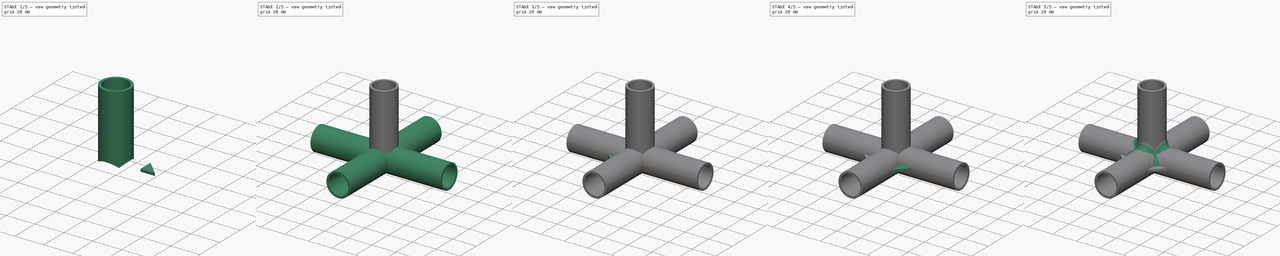
[diagram: build sequence overview — one tinted view per stage of 5, left to right]
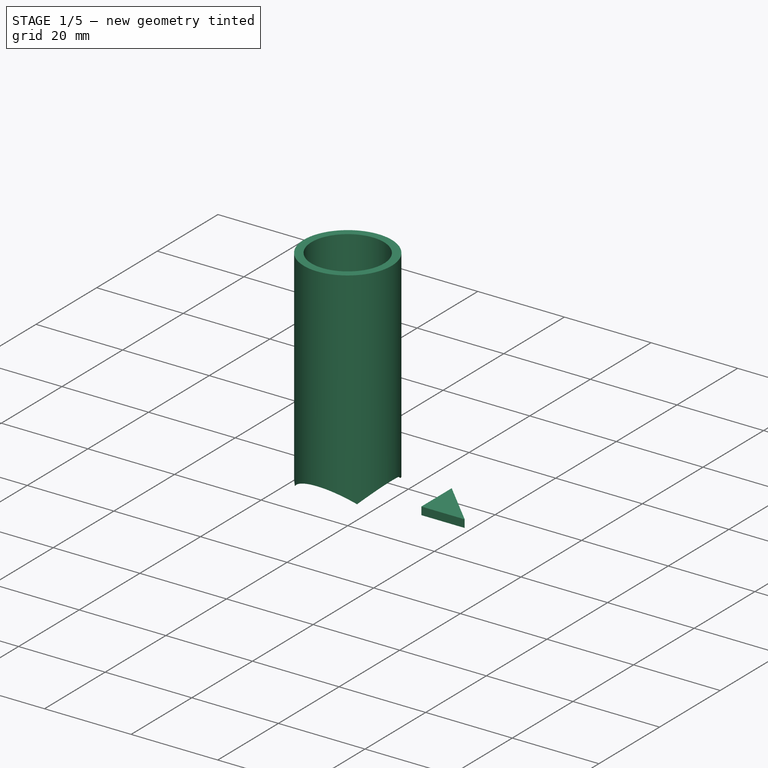
[diagram: stage 1 of 5 — iso view after this stage's code; geometry added in this stage tinted green]
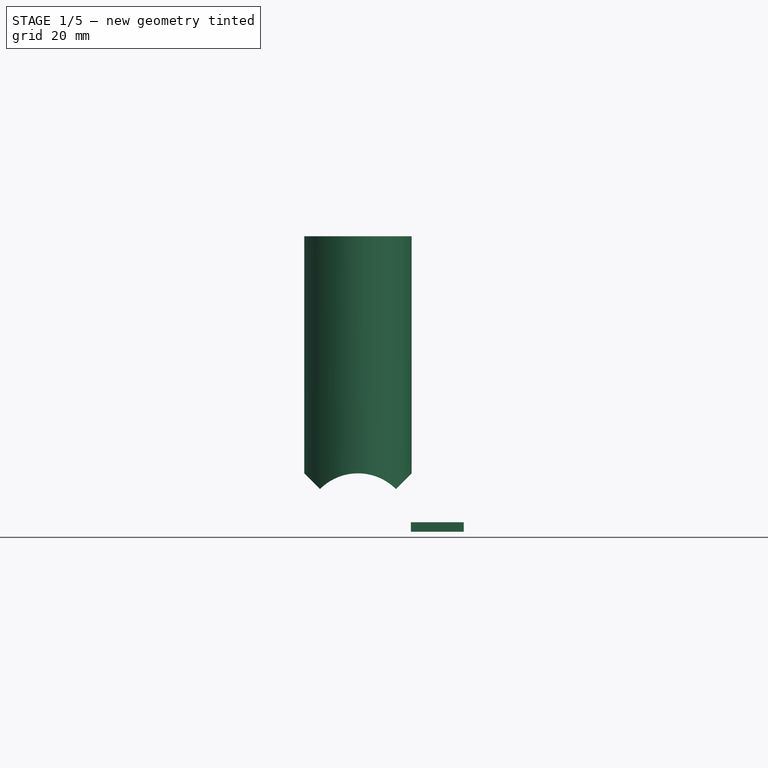
[diagram: stage 1 of 5 — front view after this stage's code; geometry added in this stage tinted green]
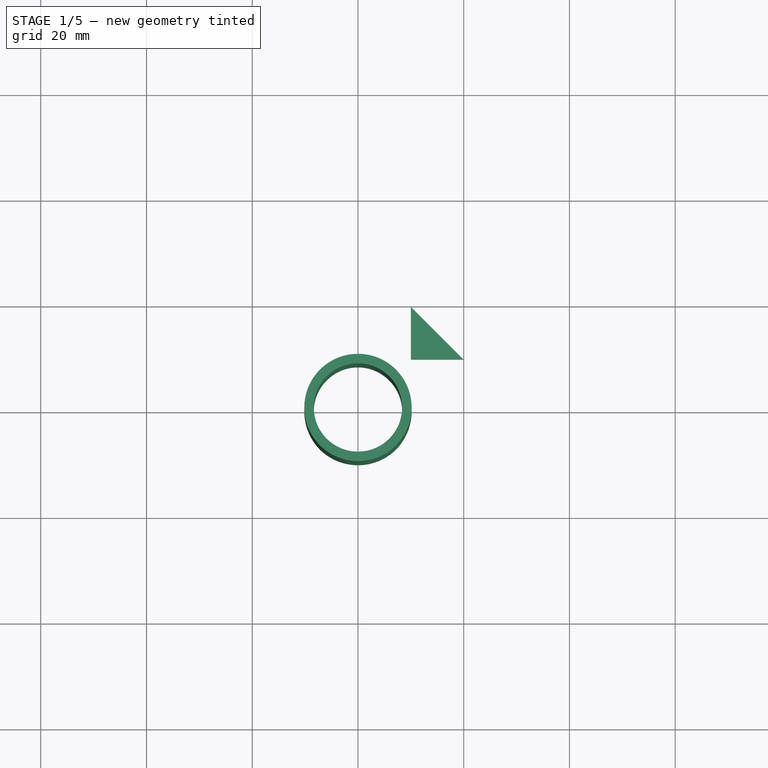
[diagram: stage 1 of 5 — top view after this stage's code; geometry added in this stage tinted green]
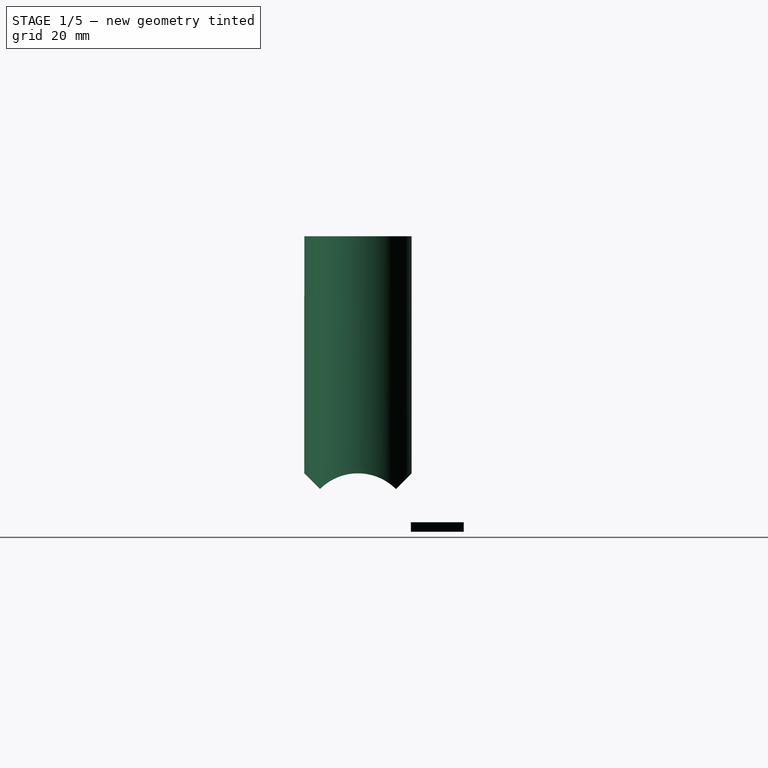
[diagram: stage 1 of 5 — right view after this stage's code; geometry added in this stage tinted green]
FCSTD DOCUMENT  (FreeCAD 0.18R16131 (Git))
Label: Electric Pipe Connectors
License: CreativeCommons Attribution-NonCommercial-NoDerivatives
LicenseURL: http://creativecommons.org/licenses/by-nc-nd/4.0/
objects: Sketcher::SketchObject×12, PartDesign::Body×9, PartDesign::Pad×7, PartDesign::Pocket×5, Part::Fuse×5, Spreadsheet::Sheet×1, PartDesign::Boolean×1, App::DocumentObjectGroup×1, PartDesign::Fillet×1
note: 52 computed .brp shape members not serialized (recipe doc carries the construction recipe); baked Part::Feature solids carry a one-line shape summary decoded from their .brp

FEATURE [PartDesign::Body] Body002  label="IntersectionPipe"
  Group = -> [Boolean,Sketch002,Pocket,Sketch003,Pocket001]
  Origin = -> Origin002
  Tip = -> Pocket001
FEATURE [Sketcher::SketchObject] Sketch004
  MapMode = 5
  Support = -> [XY_Plane003]
  sketch-geometry (3):
    g0: LineSegment StartX=10 StartY=20 StartZ=0 EndX=20 EndY=10 EndZ=0
    g1: LineSegment StartX=20 StartY=10 StartZ=0 EndX=10 EndY=10 EndZ=0
    g2: LineSegment StartX=10 StartY=10 StartZ=0 EndX=10 EndY=20 EndZ=0
  constraints (9):
    c: Coincident(g1,g0)
    c: Horizontal(g1)
    c: Coincident(g2,g1)
    c: Coincident(g2,g0)
    c: Vertical(g2)
    c: DistanceX(g-1,g1) = 10
    c: DistanceY(g-1,g1) = 10
    c: DistanceY(g0) = 20
    c: DistanceX(g-1,g0) = 20
FEATURE [PartDesign::Pad] Pad002  label="TrianglePad001"
  Length = 0.9
  Length2 = 0.9
  Profile = -> Sketch004
  Type = 4
  expr: Length2 = Spreadsheet.WallThickness / 2
  expr: Length = Spreadsheet.WallThickness / 2
FEATURE [Sketcher::SketchObject] Sketch008
  MapMode = 5
  Support = -> [XY_Plane008]
  expr: Constraints[3] = Spreadsheet.InnerRadius + Spreadsheet.WallThickness
  expr: Constraints[2] = Spreadsheet.InnerRadius
  sketch-geometry (2):
    g0: Circle CenterX=0 CenterY=0 CenterZ=0 NormalX=0 NormalY=0 NormalZ=1 AngleXU=0 Radius=8.35
    g1: Circle CenterX=0 CenterY=0 CenterZ=0 NormalX=0 NormalY=0 NormalZ=1 AngleXU=0 Radius=10.15
  constraints (4):
    c: Coincident(g0,g-1)
    c: Coincident(g1,g0)
    c: Radius(g0) = 8.35
    c: Radius(g1) = 10.15
FEATURE [PartDesign::Pad] Pad006
  Length = 55
  Length2 = 100
  Profile = -> Sketch008
  Type = 0
  expr: Length = Spreadsheet.SingleTubeLength
FEATURE [Sketcher::SketchObject] Sketch009
  MapMode = 5
  Placement = pos=(0,0,0) rot=(1,0,0;1.5708rad)
  Support = -> [XZ_Plane008]
  expr: Constraints[1] = Spreadsheet.InnerRadius + Spreadsheet.WallThickness
  sketch-geometry (1):
    g0: Circle CenterX=0 CenterY=0 CenterZ=0 NormalX=0 NormalY=0 NormalZ=1 AngleXU=0 Radius=10.15
  constraints (2):
    c: Coincident(g0,g-1)
    c: Radius(g0) = 10.15
FEATURE [PartDesign::Pocket] Pocket002
  BaseFeature = -> Pad006
  Length = 10.15
  Length2 = 10.15
  Profile = -> Sketch009
  Type = 4
  expr: Length2 = Spreadsheet.InnerRadius + Spreadsheet.WallThickness
  expr: Length = Spreadsheet.InnerRadius + Spreadsheet.WallThickness
FEATURE [Sketcher::SketchObject] Sketch010
  MapMode = 5
  Placement = pos=(0,0,0) rot=(0.57735,0.57735,0.57735;2.0944rad)
  Support = -> [YZ_Plane008]
  expr: Constraints[1] = Spreadsheet.InnerRadius + Spreadsheet.WallThickness
  sketch-geometry (1):
    g0: Circle CenterX=0 CenterY=0 CenterZ=0 NormalX=0 NormalY=0 NormalZ=1 AngleXU=0 Radius=10.15
  constraints (2):
    c: Coincident(g0,g-1)
    c: Radius(g0) = 10.15
FEATURE [PartDesign::Pocket] Pocket003  label="PipeZPocket"
  BaseFeature = -> Pocket002
  Length = 10.15
  Length2 = 10.15
  Profile = -> Sketch010
  Type = 4
  expr: Length2 = Spreadsheet.InnerRadius + Spreadsheet.WallThickness
  expr: Length = Spreadsheet.InnerRadius + Spreadsheet.WallThickness
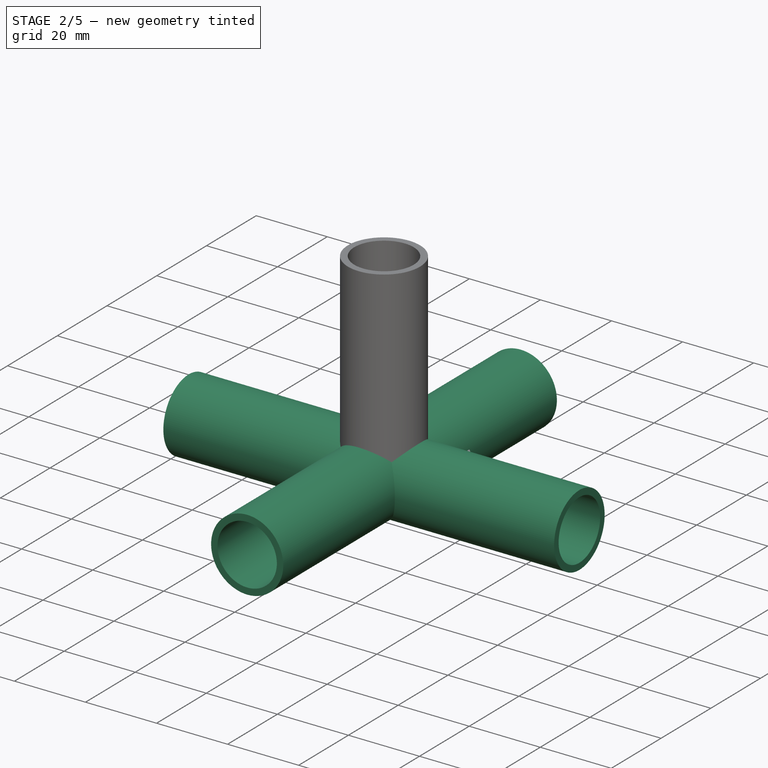
[diagram: stage 2 of 5 — iso view after this stage's code; geometry added in this stage tinted green]
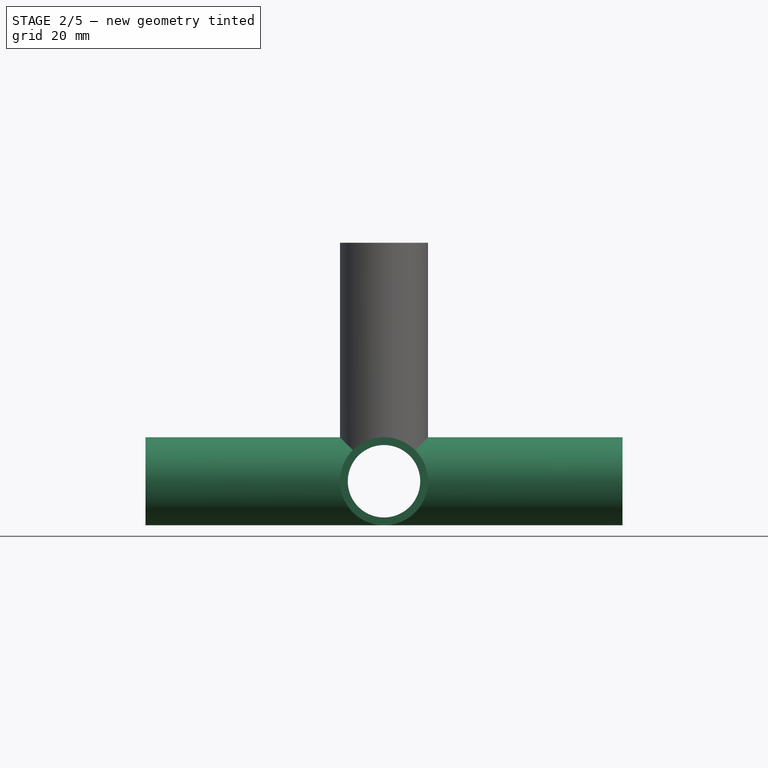
[diagram: stage 2 of 5 — front view after this stage's code; geometry added in this stage tinted green]
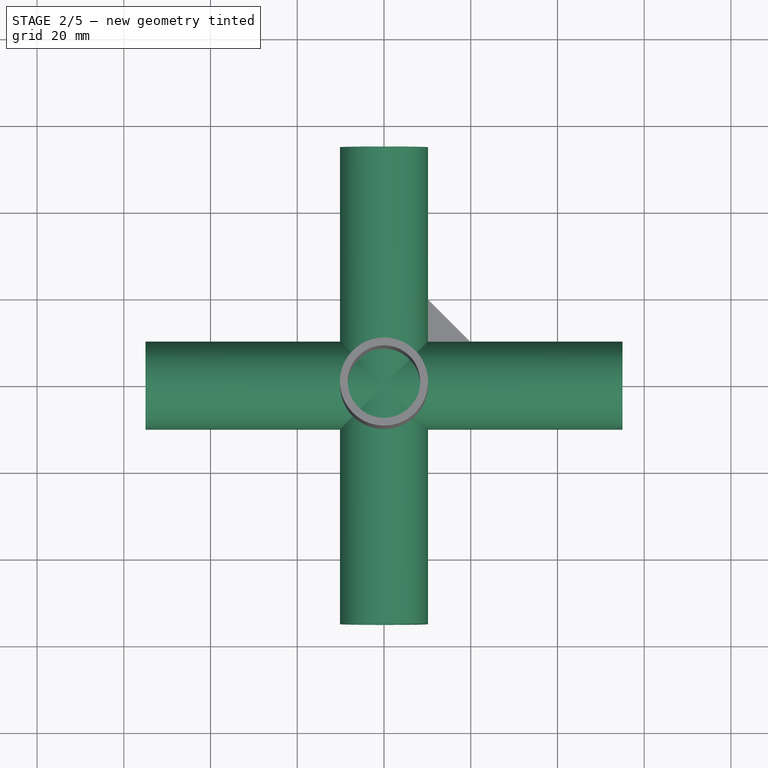
[diagram: stage 2 of 5 — top view after this stage's code; geometry added in this stage tinted green]
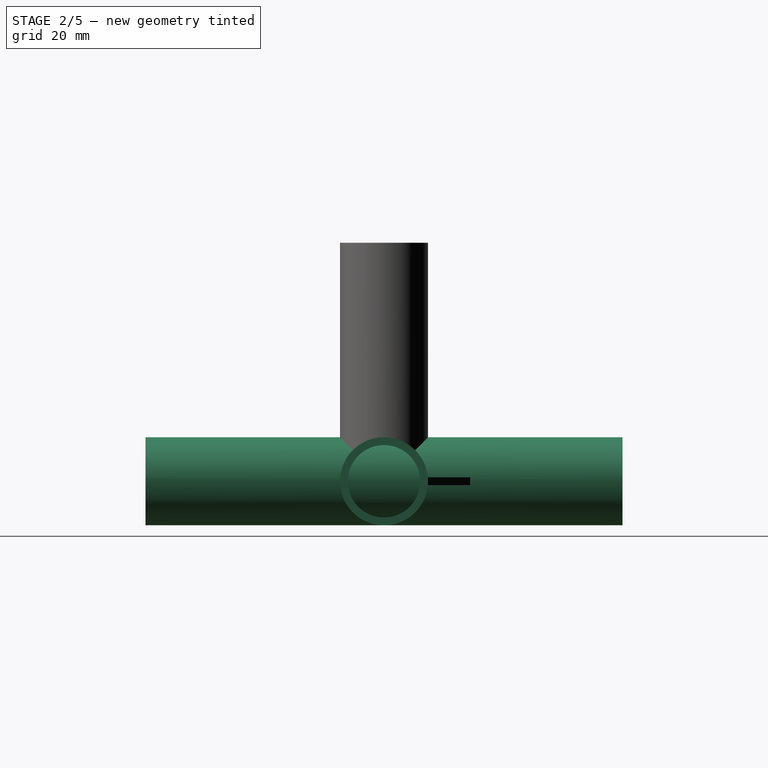
[diagram: stage 2 of 5 — right view after this stage's code; geometry added in this stage tinted green]
FEATURE [Sketcher::SketchObject] Sketch
  MapMode = 5
  Placement = pos=(0,0,0) rot=(1,0,0;1.5708rad)
  Support = -> [XZ_Plane]
  expr: Constraints[3] = Spreadsheet.InnerRadius + Spreadsheet.WallThickness
  expr: Constraints[1] = Spreadsheet.InnerRadius
  sketch-geometry (2):
    g0: Circle CenterX=0 CenterY=0 CenterZ=0 NormalX=0 NormalY=0 NormalZ=1 AngleXU=0 Radius=8.35
    g1: Circle CenterX=0 CenterY=0 CenterZ=0 NormalX=0 NormalY=0 NormalZ=1 AngleXU=0 Radius=10.15
  constraints (4):
    c: Coincident(g0,g-1)
    c: Radius(g0) = 8.35
    c: Coincident(g1,g0)
    c: Radius(g1) = 10.15
FEATURE [Spreadsheet::Sheet] Spreadsheet
  cells = A1=InnerDiameter; B1(InnerDiameter)==16.7mm; A2=InnerRadius; B2(InnerRadius)==B1 / 2; A3=WallThickness; B3(WallThickness)==1.8mm; A4=SingleTubeLength; B4(SingleTubeLength)==55mm
FEATURE [PartDesign::Pad] Pad  label="PipeYPad"
  Length = 55
  Length2 = 55
  Placement = pos=(0,0,0) rot=(1,0,0;1.5708rad)
  Profile = -> Sketch
  Type = 4
  expr: Length2 = Spreadsheet.SingleTubeLength
  expr: Length = Spreadsheet.SingleTubeLength
FEATURE [PartDesign::Body] Body  label="PipeY"
  Group = -> [Sketch,Pad]
  Origin = -> Origin
  Tip = -> Pad
FEATURE [Sketcher::SketchObject] Sketch001
  MapMode = 5
  Placement = pos=(0,0,0) rot=(0.57735,0.57735,0.57735;2.0944rad)
  Support = -> [YZ_Plane001]
  expr: Constraints[3] = Spreadsheet.InnerRadius + Spreadsheet.WallThickness
  expr: Constraints[1] = Spreadsheet.InnerRadius
  sketch-geometry (2):
    g0: Circle CenterX=0 CenterY=0 CenterZ=0 NormalX=0 NormalY=0 NormalZ=1 AngleXU=0 Radius=8.35
    g1: Circle CenterX=0 CenterY=0 CenterZ=0 NormalX=0 NormalY=0 NormalZ=1 AngleXU=0 Radius=10.15
  constraints (4):
    c: Coincident(g0,g-1)
    c: Radius(g0) = 8.35
    c: Coincident(g1,g0)
    c: Radius(g1) = 10.15
FEATURE [PartDesign::Pad] Pad001  label="PipeXPad"
  Length = 55
  Length2 = 55
  Placement = pos=(0,0,0) rot=(0.57735,0.57735,0.57735;2.0944rad)
  Profile = -> Sketch001
  Type = 4
  expr: Length2 = Spreadsheet.SingleTubeLength
  expr: Length = Spreadsheet.SingleTubeLength
FEATURE [PartDesign::Body] Body001  label="PipeX"
  Group = -> [Sketch001,Pad001]
  Origin = -> Origin001
  Tip = -> Pad001
FEATURE [PartDesign::Boolean] Boolean
  Group = -> [Body,Body001]
  Type = 0
FEATURE [Sketcher::SketchObject] Sketch002
  MapMode = 5
  Placement = pos=(0,-55,-2.42e-14) rot=(1,0,0;1.5708rad)
  Support = -> [Boolean]
  expr: Constraints[1] = Spreadsheet.InnerRadius
  sketch-geometry (1):
    g0: Circle CenterX=0 CenterY=0 CenterZ=0 NormalX=0 NormalY=0 NormalZ=1 AngleXU=0 Radius=8.35
  constraints (2):
    c: Coincident(g0,g-1)
    c: Radius(g0) = 8.35
FEATURE [PartDesign::Pocket] Pocket
  BaseFeature = -> Boolean
  Length = 100
  Length2 = 100
  Profile = -> Sketch002
  Type = 1
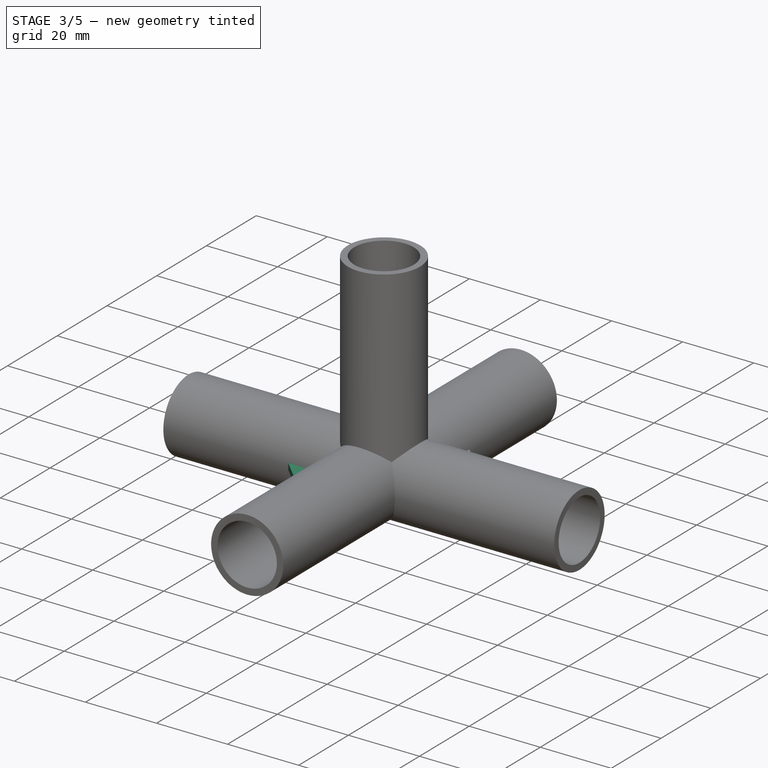
[diagram: stage 3 of 5 — iso view after this stage's code; geometry added in this stage tinted green]
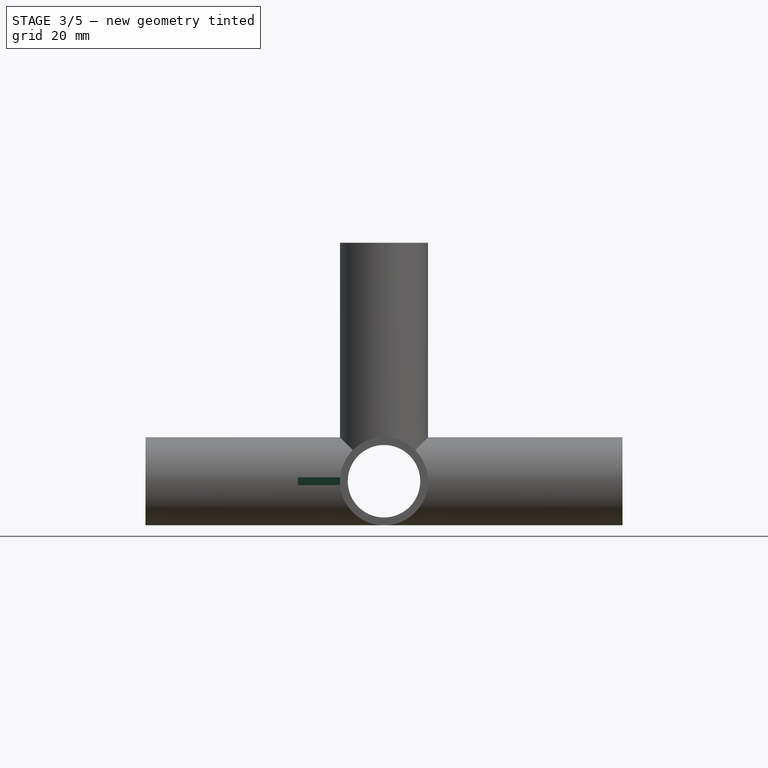
[diagram: stage 3 of 5 — front view after this stage's code; geometry added in this stage tinted green]
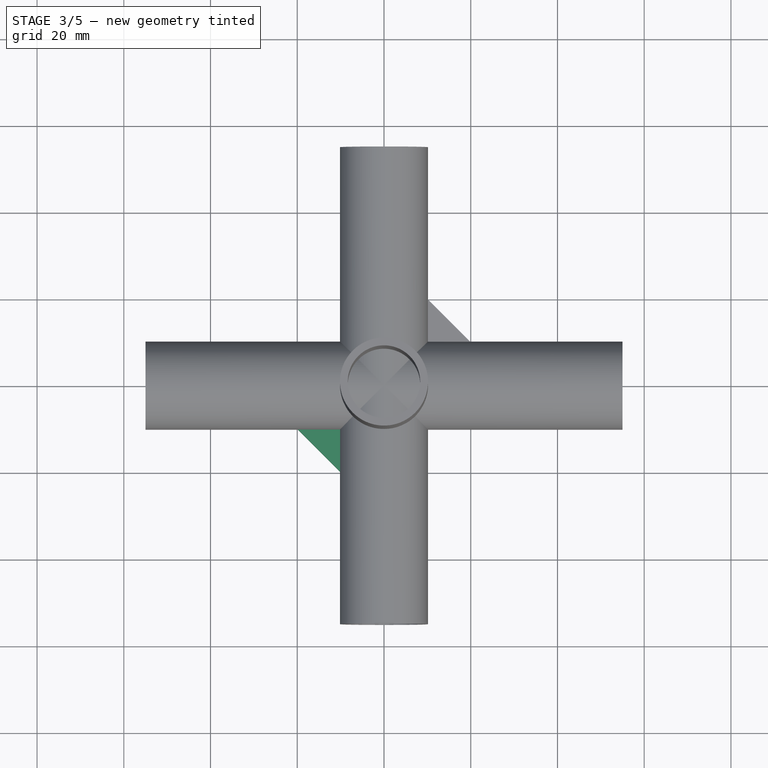
[diagram: stage 3 of 5 — top view after this stage's code; geometry added in this stage tinted green]
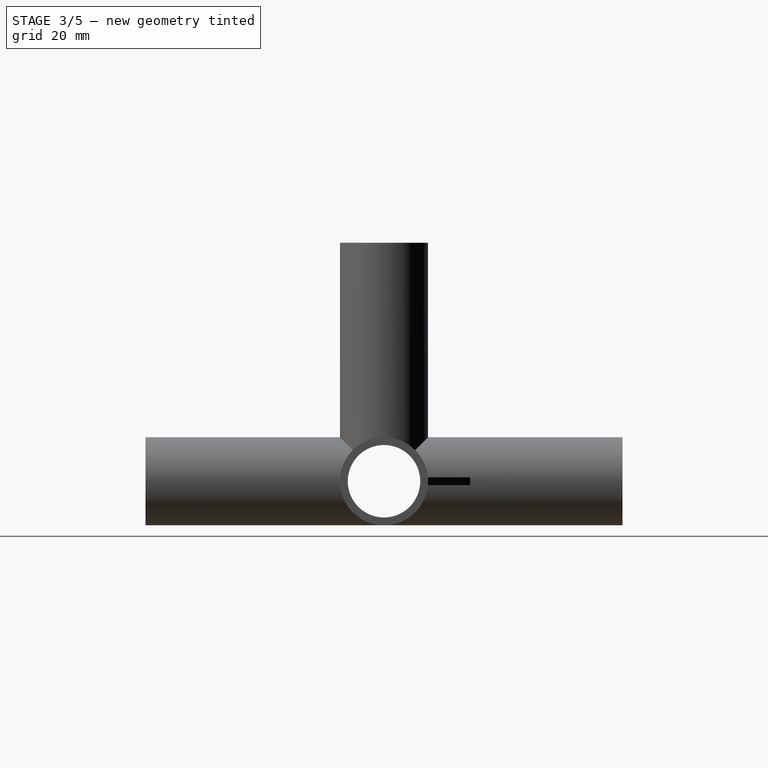
[diagram: stage 3 of 5 — right view after this stage's code; geometry added in this stage tinted green]
FEATURE [Sketcher::SketchObject] Sketch003
  MapMode = 5
  Placement = pos=(-55,2.42e-14,-6.1e-15) rot=(-0.57735,0.57735,0.57735;4.18879rad)
  Support = -> [Pocket]
  expr: Constraints[1] = Spreadsheet.InnerRadius
  sketch-geometry (1):
    g0: Circle CenterX=0 CenterY=0 CenterZ=0 NormalX=0 NormalY=0 NormalZ=1 AngleXU=0 Radius=8.35
  constraints (2):
    c: Coincident(g0,g-1)
    c: Radius(g0) = 8.35
FEATURE [PartDesign::Pocket] Pocket001  label="IntersectionPipePocket"
  BaseFeature = -> Pocket
  Length = 5
  Length2 = 100
  Profile = -> Sketch003
  Type = 1
FEATURE [PartDesign::Body] Body003  label="Triangle001"
  Group = -> [Sketch004,Pad002]
  Origin = -> Origin003
  Tip = -> Pad002
FEATURE [Sketcher::SketchObject] Sketch005
  MapMode = 5
  Support = -> [XY_Plane004]
  sketch-geometry (3):
    g0: LineSegment StartX=-10 StartY=-10 StartZ=0 EndX=-10 EndY=-20 EndZ=0
    g1: LineSegment StartX=-10 StartY=-10 StartZ=0 EndX=-20 EndY=-10 EndZ=0
    g2: LineSegment StartX=-20 StartY=-10 StartZ=0 EndX=-10 EndY=-20 EndZ=0
  constraints (4):
    c: Vertical(g0)
    c: Horizontal(g1)
    c: Coincident(g2,g1)
    c: Coincident(g2,g0)
FEATURE [PartDesign::Pad] Pad003  label="TrianglePad002"
  Length = 0.9
  Length2 = 0.9
  Profile = -> Sketch005
  Type = 4
  expr: Length2 = Spreadsheet.WallThickness / 2
  expr: Length = Spreadsheet.WallThickness / 2
FEATURE [PartDesign::Body] Body006  label="Triangle004"
  Group = -> [Sketch007,Pad005]
  Origin = -> Origin006
  Tip = -> Pad005
FEATURE [App::DocumentObjectGroup] Group  label="Triangle Corners"
  Group = -> [Body003,Body004,Body005,Body006]
FEATURE [Part::Fuse] Fusion
  Base = -> Pocket001
  Tool = -> Pad002
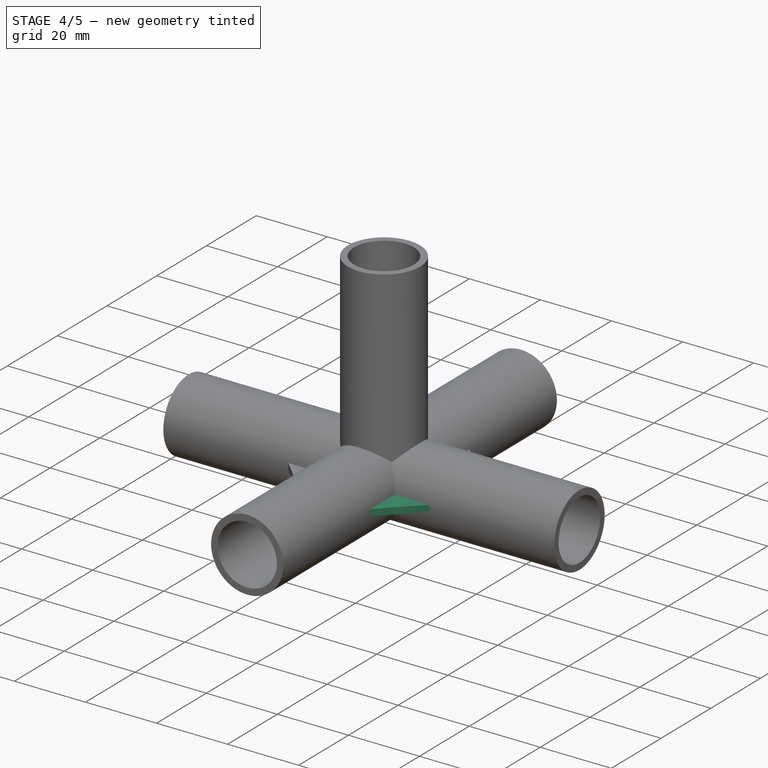
[diagram: stage 4 of 5 — iso view after this stage's code; geometry added in this stage tinted green]
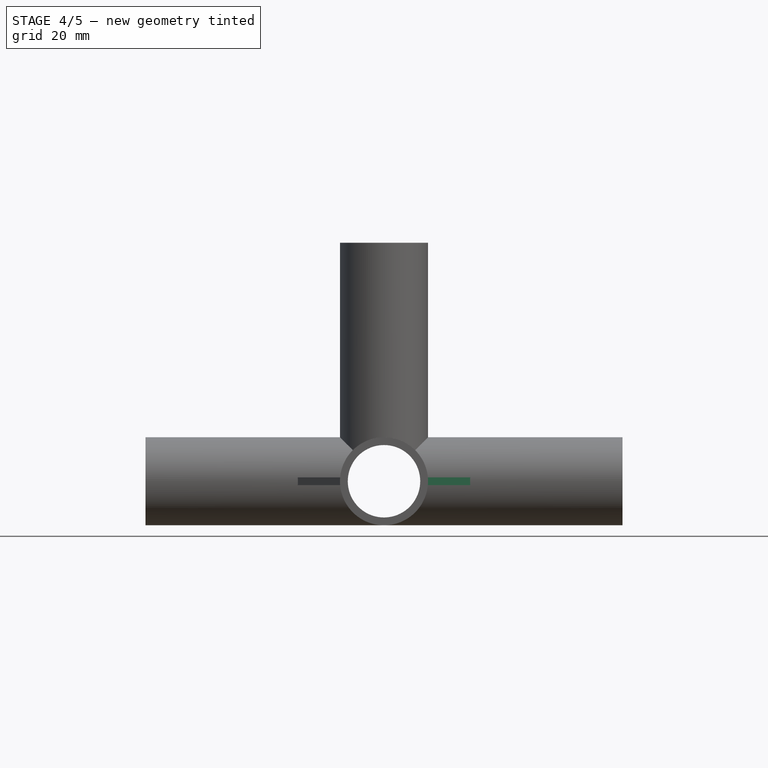
[diagram: stage 4 of 5 — front view after this stage's code; geometry added in this stage tinted green]
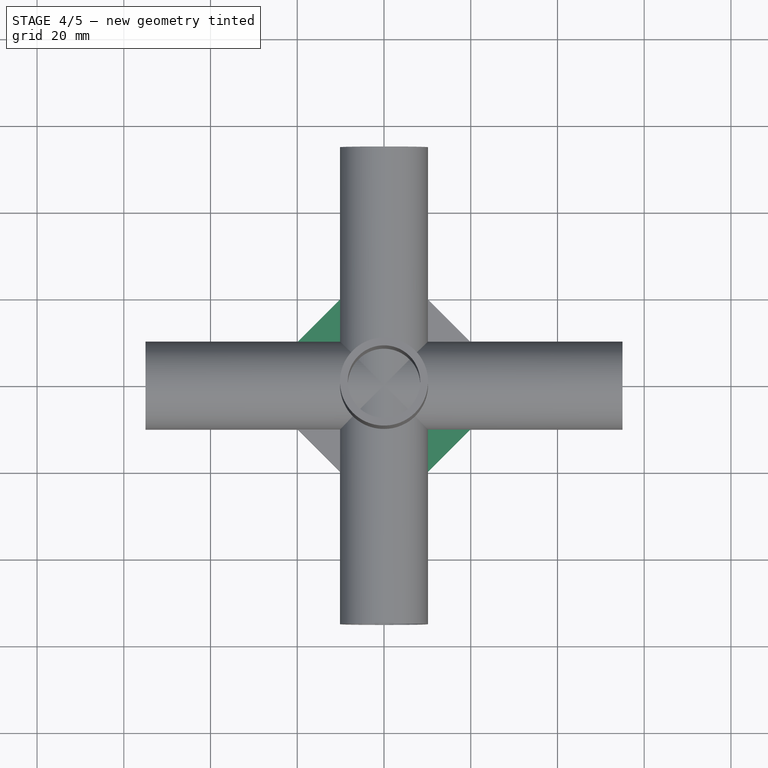
[diagram: stage 4 of 5 — top view after this stage's code; geometry added in this stage tinted green]
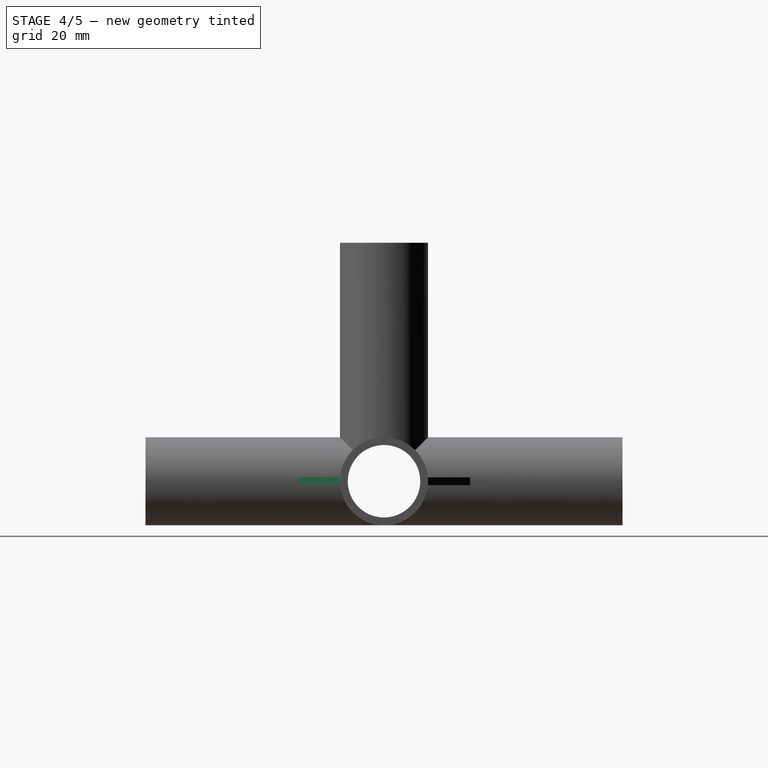
[diagram: stage 4 of 5 — right view after this stage's code; geometry added in this stage tinted green]
FEATURE [PartDesign::Body] Body004  label="Triangle002"
  Group = -> [Sketch005,Pad003]
  Origin = -> Origin004
  Tip = -> Pad003
FEATURE [Sketcher::SketchObject] Sketch006
  MapMode = 5
  Support = -> [XY_Plane005]
  sketch-geometry (3):
    g0: LineSegment StartX=-10 StartY=10 StartZ=0 EndX=-10 EndY=20 EndZ=0
    g1: LineSegment StartX=-10 StartY=20 StartZ=0 EndX=-20 EndY=10 EndZ=0
    g2: LineSegment StartX=-20 StartY=10 StartZ=0 EndX=-10 EndY=10 EndZ=0
  constraints (2):
    c: Vertical(g0)
    c: Horizontal(g2)
FEATURE [PartDesign::Pad] Pad004  label="TrianglePad003"
  Length = 0.9
  Length2 = 0.9
  Profile = -> Sketch006
  Type = 4
  expr: Length2 = Spreadsheet.WallThickness / 2
  expr: Length = Spreadsheet.WallThickness / 2
FEATURE [PartDesign::Body] Body005  label="Triangle003"
  Group = -> [Sketch006,Pad004]
  Origin = -> Origin005
  Tip = -> Pad004
FEATURE [Sketcher::SketchObject] Sketch007
  MapMode = 5
  Support = -> [XY_Plane006]
  sketch-geometry (3):
    g0: LineSegment StartX=10 StartY=-10 StartZ=0 EndX=10 EndY=-20 EndZ=0
    g1: LineSegment StartX=10 StartY=-10 StartZ=0 EndX=20 EndY=-10 EndZ=0
    g2: LineSegment StartX=10 StartY=-20 StartZ=0 EndX=20 EndY=-10 EndZ=0
  constraints (3):
    c: Vertical(g0)
    c: Horizontal(g1)
    c: Coincident(g2,g0)
FEATURE [PartDesign::Pad] Pad005  label="TrianglePad004"
  Length = 0.9
  Length2 = 0.9
  Profile = -> Sketch007
  Type = 4
  expr: Length2 = Spreadsheet.WallThickness / 2
  expr: Length = Spreadsheet.WallThickness / 2
FEATURE [Part::Fuse] Fusion001
  Base = -> Fusion
  Tool = -> Pad003
FEATURE [Part::Fuse] Fusion002
  Base = -> Fusion001
  Tool = -> Pad004
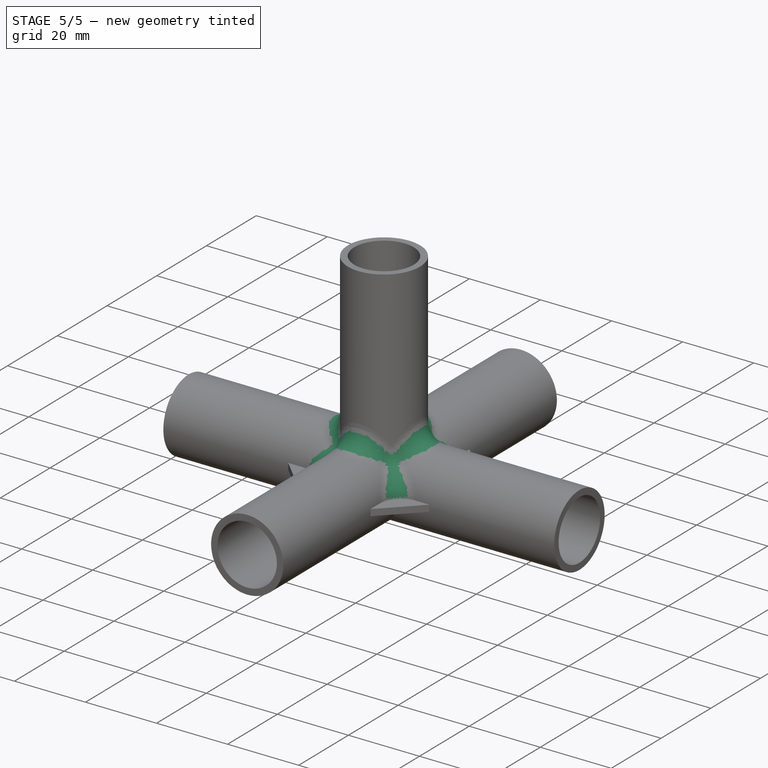
[diagram: stage 5 of 5 — iso view after this stage's code; geometry added in this stage tinted green]
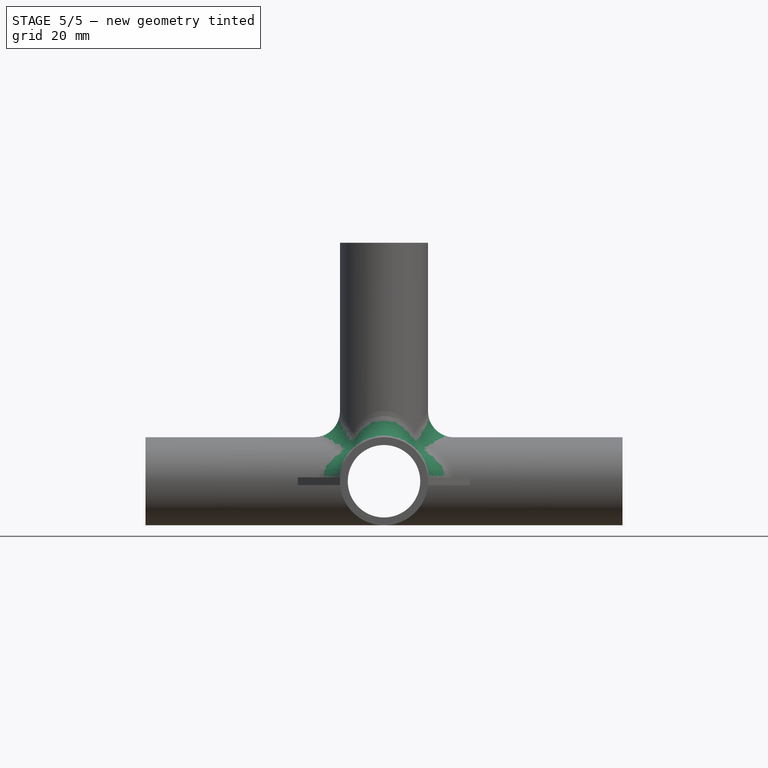
[diagram: stage 5 of 5 — front view after this stage's code; geometry added in this stage tinted green]
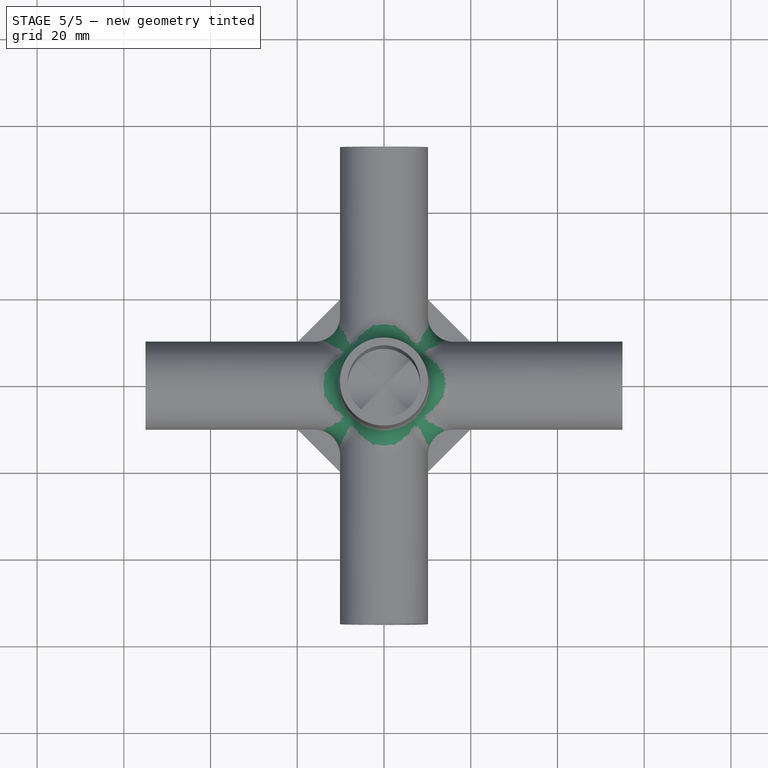
[diagram: stage 5 of 5 — top view after this stage's code; geometry added in this stage tinted green]
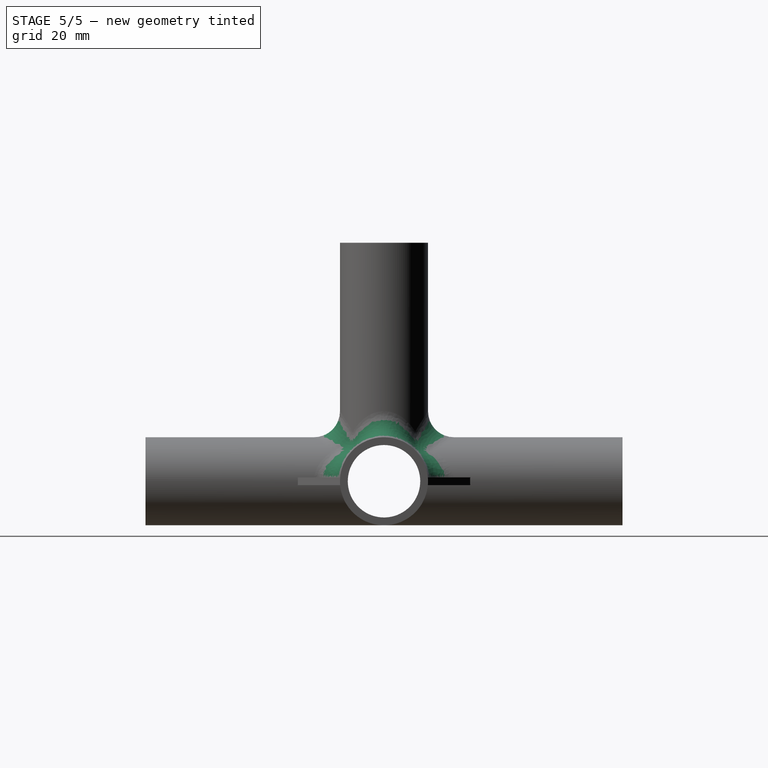
[diagram: stage 5 of 5 — right view after this stage's code; geometry added in this stage tinted green]
FEATURE [Part::Fuse] Fusion003  label="FusionPipeYandX"
  Base = -> Fusion002
  Tool = -> Pad005
FEATURE [PartDesign::Body] Body008  label="PipeZ"
  Group = -> [Sketch008,Pad006,Sketch009,Pocket002,Sketch010,Pocket003]
  Origin = -> Origin008
  Tip = -> Pocket003
FEATURE [Part::Fuse] Fusion004
  Base = -> Pocket003
  Tool = -> Fusion003
FEATURE [Sketcher::SketchObject] Sketch011
  MapMode = 5
  Placement = pos=(0,0,55) rot=(0,0,1;0rad)
  Support = -> [Fusion004]
  expr: Constraints[1] = Spreadsheet.InnerRadius
  sketch-geometry (1):
    g0: Circle CenterX=0 CenterY=0 CenterZ=0 NormalX=0 NormalY=0 NormalZ=1 AngleXU=0 Radius=8.35
  constraints (2):
    c: Coincident(g0,g-1)
    c: Radius(g0) = 8.35
FEATURE [PartDesign::Pocket] Pocket004
  Length = 59.175
  Length2 = 100
  Profile = -> Sketch011
  Type = 0
  expr: Length = Spreadsheet.SingleTubeLength + Spreadsheet.InnerRadius / 2
FEATURE [PartDesign::Fillet] Fillet
  Base = -> Pocket004 [Edge19,Edge26,Edge18,Edge16,Edge40,Edge38,Edge48,Edge28]
  BaseFeature = -> Pocket004
  Radius = 6
FEATURE [PartDesign::Body] Body009
  Group = -> [Sketch011,Pocket004,Fillet]
  Origin = -> Origin009
  Tip = -> Fillet
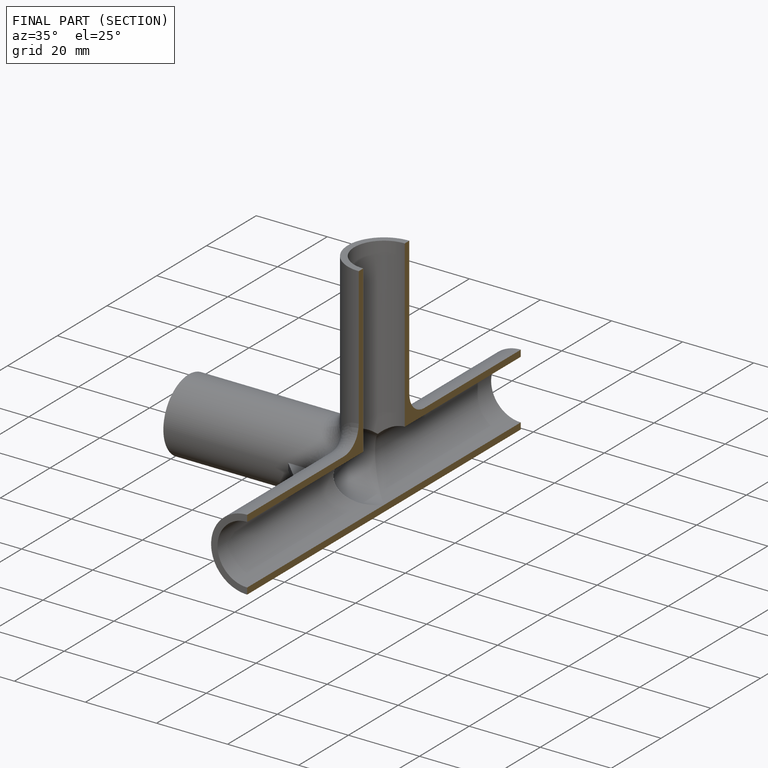
[diagram: finished part — half-section view (interior)]
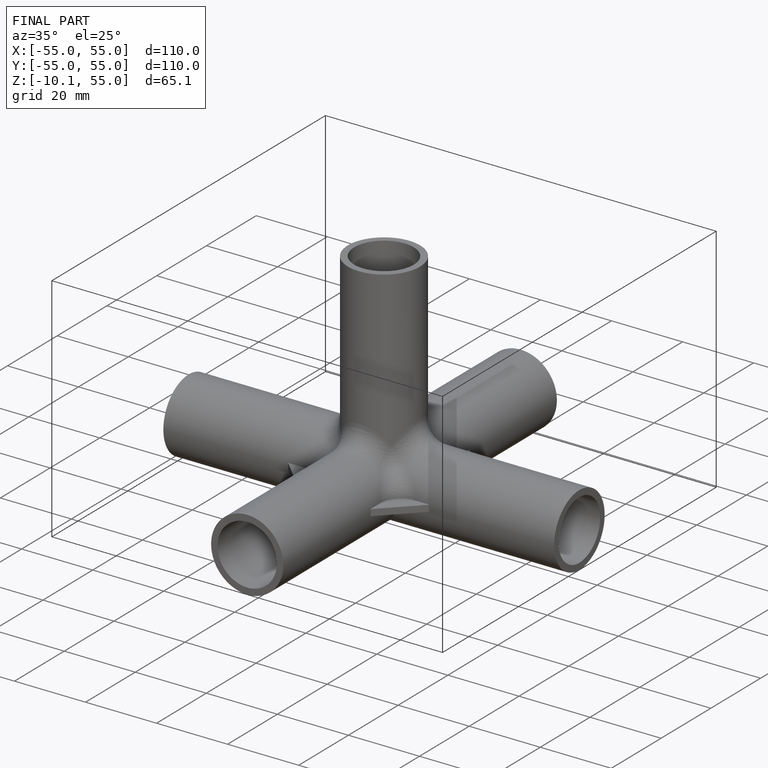
[diagram: finished part — iso view with bounding-box wireframe]
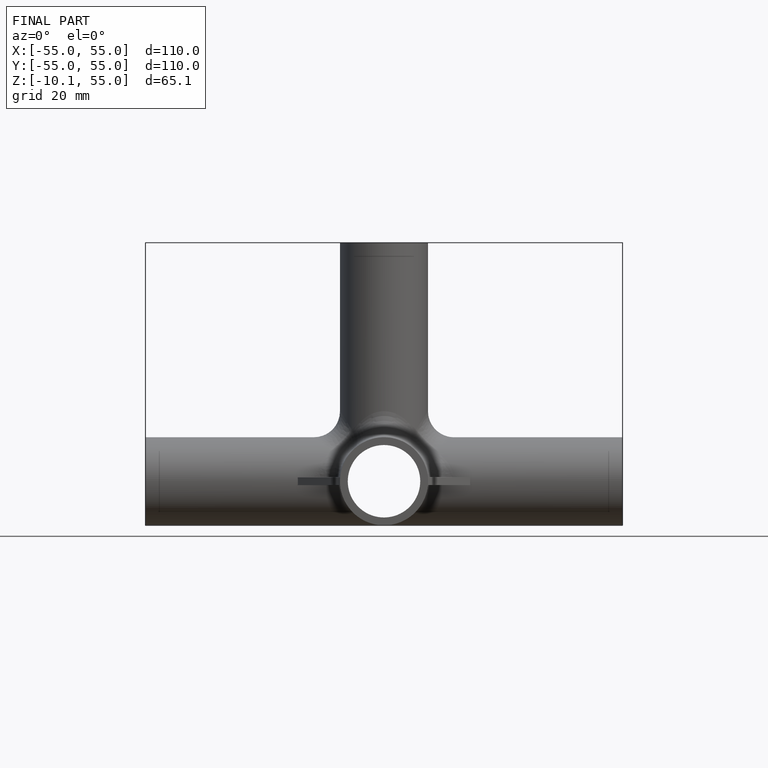
[diagram: finished part — front view with bounding-box wireframe]
